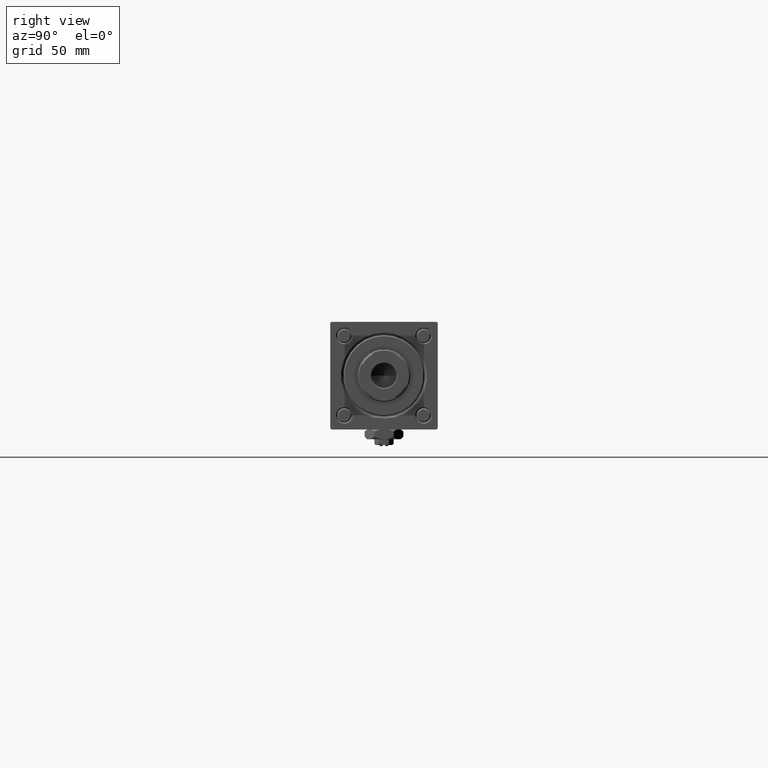
[diagram: clean part render]
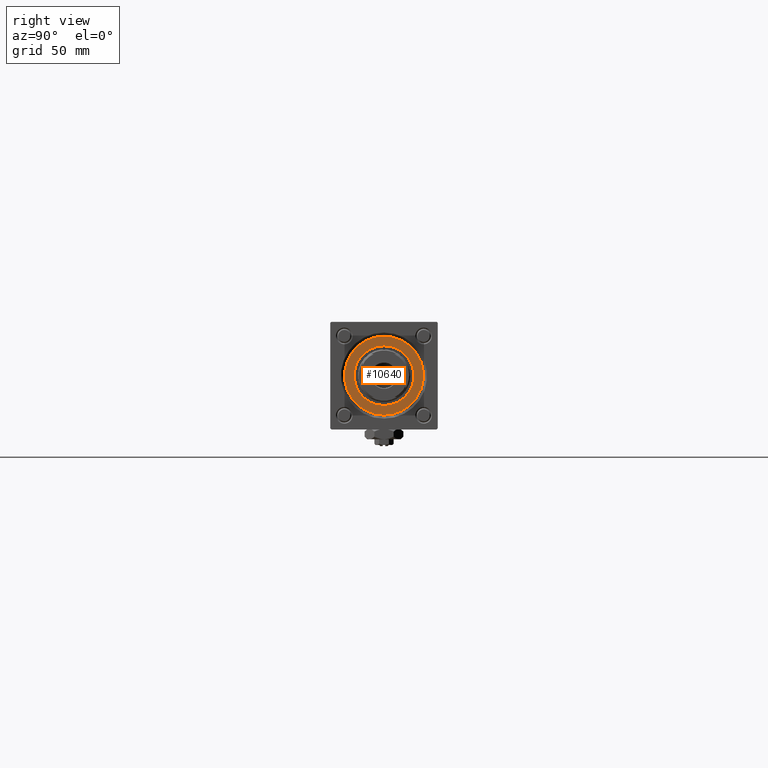
[diagram: same view with one face highlighted and labeled with its STEP entity id]
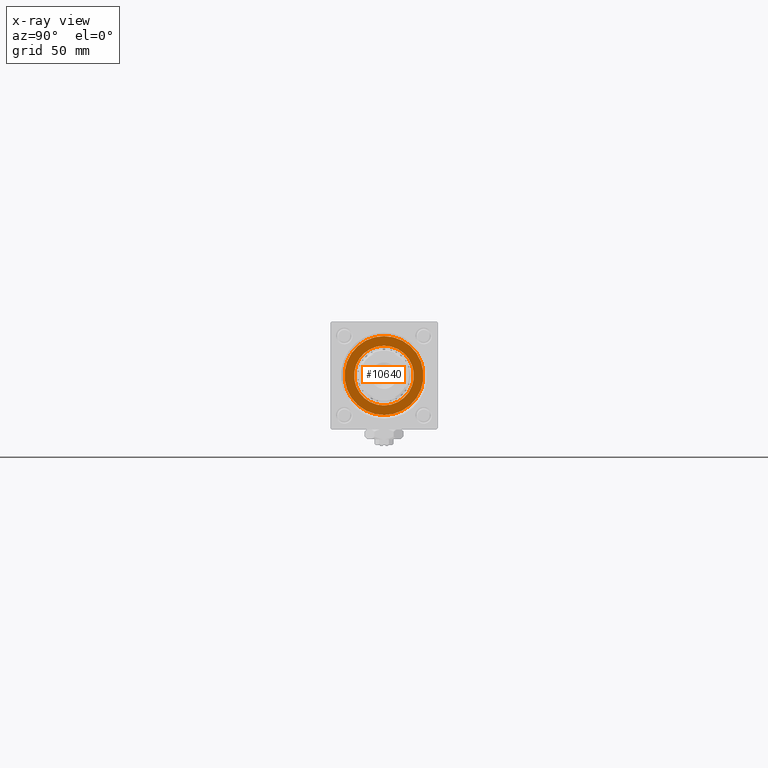
[diagram: x-ray of the same camera — body ghosted, the highlighted face saturated]
A machine part, right view. The second image highlights one B-rep face of the part: STEP entity #10640.
The next image is the same camera in x-ray: the body ghosted, the highlighted face saturated — about 0% of this face is hidden behind the body in this view.
In plain terms, the highlighted planar face has unit normal (1, 0, 0).
Its self-contained STEP definition (entity closure, byte-faithful):
#1686 = FACE_BOUND ( 'NONE', #8270, .T. ) ;
#1854 = VERTEX_POINT ( 'NONE', #49591 ) ;
#7663 = ORIENTED_EDGE ( 'NONE', *, *, #54036, .T. ) ;
#8270 = EDGE_LOOP ( 'NONE', ( #8406, #22087 ) ) ;
#8406 = ORIENTED_EDGE ( 'NONE', *, *, #37415, .F. ) ;
#9622 = CIRCLE ( 'NONE', #17259, 12.50000000000000000 ) ;
#10640 = ADVANCED_FACE ( 'NONE', ( #1686, #33548 ), #29669, .T. ) ;
#10667 = CARTESIAN_POINT ( 'NONE',  ( 0.000000000000000000, 0.000000000000000000, 40.70000000000000284 ) ) ;
#11772 = VERTEX_POINT ( 'NONE', #37949 ) ;
#12881 = AXIS2_PLACEMENT_3D ( 'NONE', #10667, #56772, #37477 ) ;
#13257 = CIRCLE ( 'NONE', #15197, 16.49999999999999289 ) ;
#15197 = AXIS2_PLACEMENT_3D ( 'NONE', #24234, #29571, #47711 ) ;
#16096 = DIRECTION ( 'NONE',  ( 1.000000000000000000, 0.000000000000000000, 0.000000000000000000 ) ) ;
#16895 = CARTESIAN_POINT ( 'NONE',  ( 0.000000000000000000, 0.000000000000000000, 40.70000000000000284 ) ) ;
#17259 = AXIS2_PLACEMENT_3D ( 'NONE', #16895, #52277, #29685 ) ;
#17642 = AXIS2_PLACEMENT_3D ( 'NONE', #38724, #39017, #16096 ) ;
#18454 = ORIENTED_EDGE ( 'NONE', *, *, #32428, .T. ) ;
#19607 = VERTEX_POINT ( 'NONE', #31841 ) ;
#22087 = ORIENTED_EDGE ( 'NONE', *, *, #53173, .F. ) ;
#24032 = CARTESIAN_POINT ( 'NONE',  ( 0.000000000000000000, 0.000000000000000000, 40.70000000000000284 ) ) ;
#24234 = CARTESIAN_POINT ( 'NONE',  ( 0.000000000000000000, 0.000000000000000000, 40.70000000000000284 ) ) ;
#29054 = EDGE_LOOP ( 'NONE', ( #7663, #18454 ) ) ;
#29571 = DIRECTION ( 'NONE',  ( 0.000000000000000000, 0.000000000000000000, 1.000000000000000000 ) ) ;
#29669 = PLANE ( 'NONE',  #44006 ) ;
#29685 = DIRECTION ( 'NONE',  ( 1.000000000000000000, 0.000000000000000000, 0.000000000000000000 ) ) ;
#31443 = CARTESIAN_POINT ( 'NONE',  ( 16.49999999999999289, 2.051283388571816493E-15, 40.70000000000000284 ) ) ;
#31841 = CARTESIAN_POINT ( 'NONE',  ( -12.50000000000000000, 1.530808498934191521E-15, 40.70000000000000284 ) ) ;
#32428 = EDGE_CURVE ( 'NONE', #37474, #11772, #13257, .T. ) ;
#33548 = FACE_OUTER_BOUND ( 'NONE', #29054, .T. ) ;
#34134 = DIRECTION ( 'NONE',  ( 0.000000000000000000, 0.000000000000000000, 1.000000000000000000 ) ) ;
#34704 = CIRCLE ( 'NONE', #12881, 12.50000000000000000 ) ;
#37415 = EDGE_CURVE ( 'NONE', #1854, #19607, #9622, .T. ) ;
#37474 = VERTEX_POINT ( 'NONE', #31443 ) ;
#37477 = DIRECTION ( 'NONE',  ( 1.000000000000000000, 0.000000000000000000, 0.000000000000000000 ) ) ;
#37949 = CARTESIAN_POINT ( 'NONE',  ( -16.49999999999999289, 0.000000000000000000, 40.70000000000000284 ) ) ;
#38724 = CARTESIAN_POINT ( 'NONE',  ( 0.000000000000000000, 0.000000000000000000, 40.70000000000000284 ) ) ;
#39017 = DIRECTION ( 'NONE',  ( 0.000000000000000000, 0.000000000000000000, 1.000000000000000000 ) ) ;
#43051 = DIRECTION ( 'NONE',  ( 1.000000000000000000, 0.000000000000000000, -0.000000000000000000 ) ) ;
#43260 = CIRCLE ( 'NONE', #17642, 16.49999999999999289 ) ;
#44006 = AXIS2_PLACEMENT_3D ( 'NONE', #24032, #34134, #43051 ) ;
#47711 = DIRECTION ( 'NONE',  ( 1.000000000000000000, 0.000000000000000000, 0.000000000000000000 ) ) ;
#49591 = CARTESIAN_POINT ( 'NONE',  ( 12.50000000000000000, 0.000000000000000000, 40.70000000000000284 ) ) ;
#52277 = DIRECTION ( 'NONE',  ( 0.000000000000000000, 0.000000000000000000, 1.000000000000000000 ) ) ;
#53173 = EDGE_CURVE ( 'NONE', #19607, #1854, #34704, .T. ) ;
#54036 = EDGE_CURVE ( 'NONE', #11772, #37474, #43260, .T. ) ;
#56772 = DIRECTION ( 'NONE',  ( 0.000000000000000000, 0.000000000000000000, 1.000000000000000000 ) ) ;